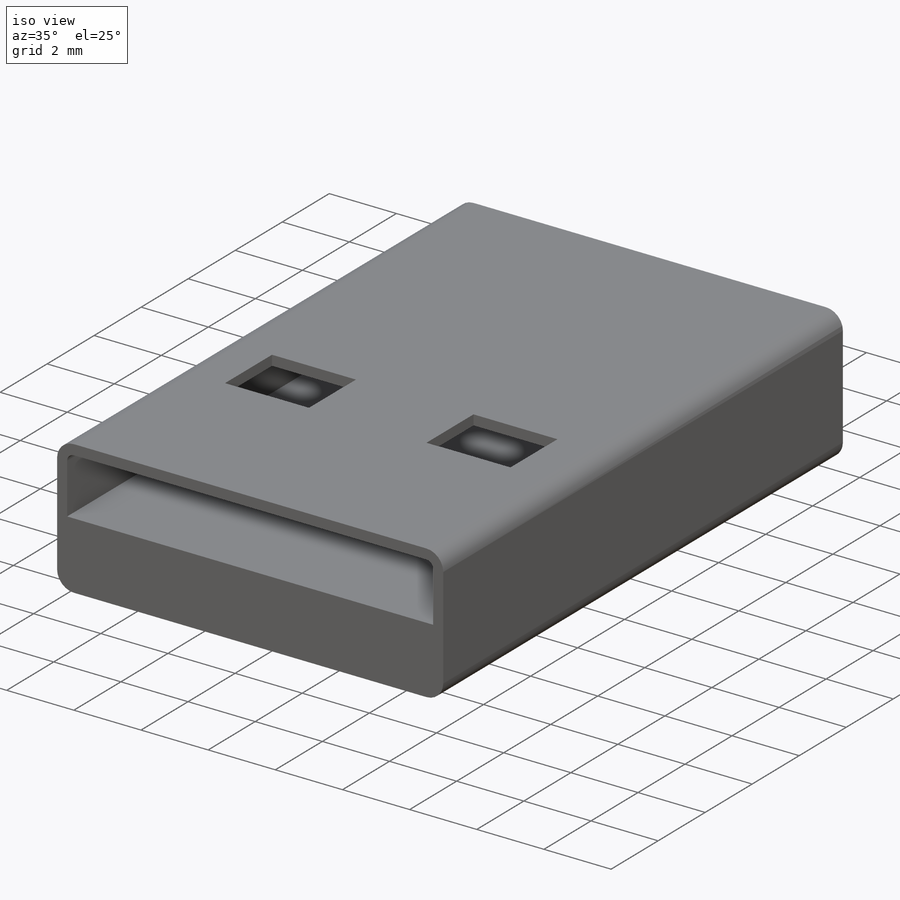
[diagram: iso view]
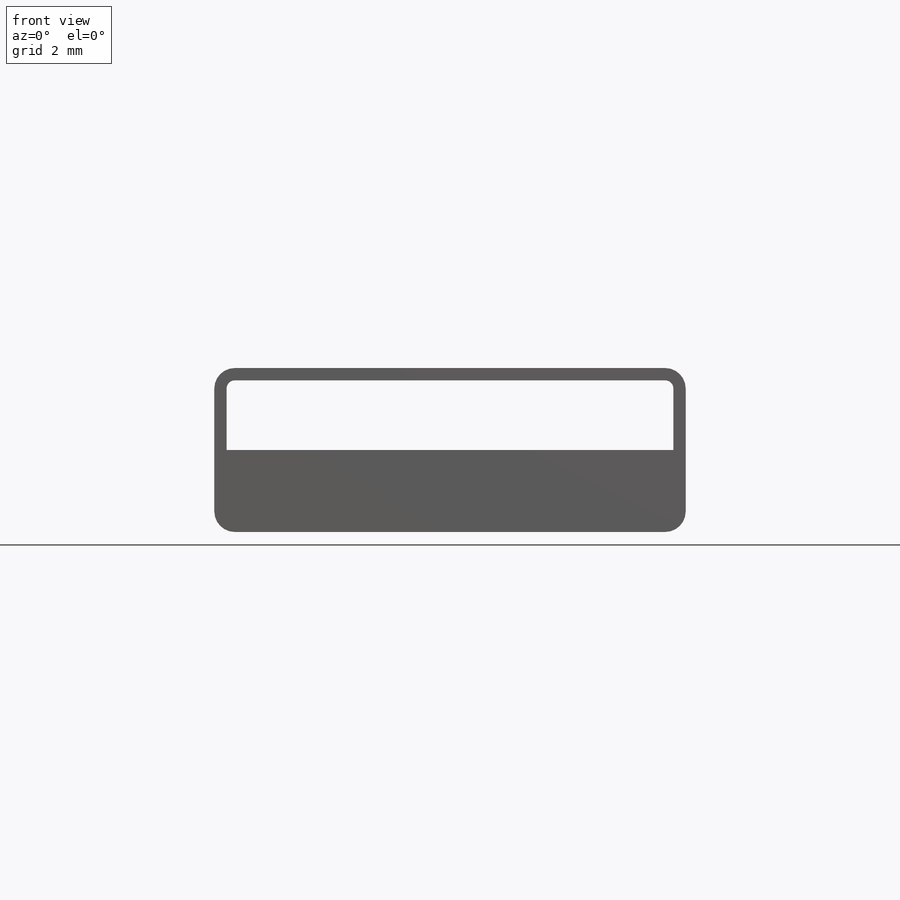
[diagram: front view]
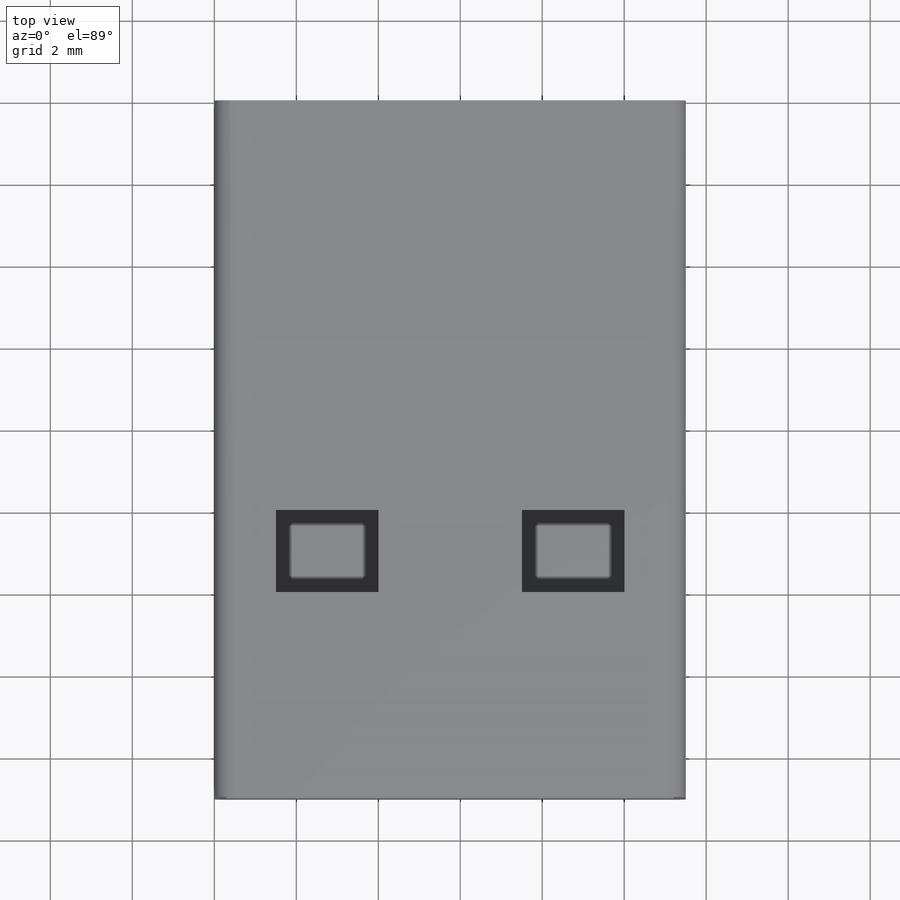
[diagram: top view]
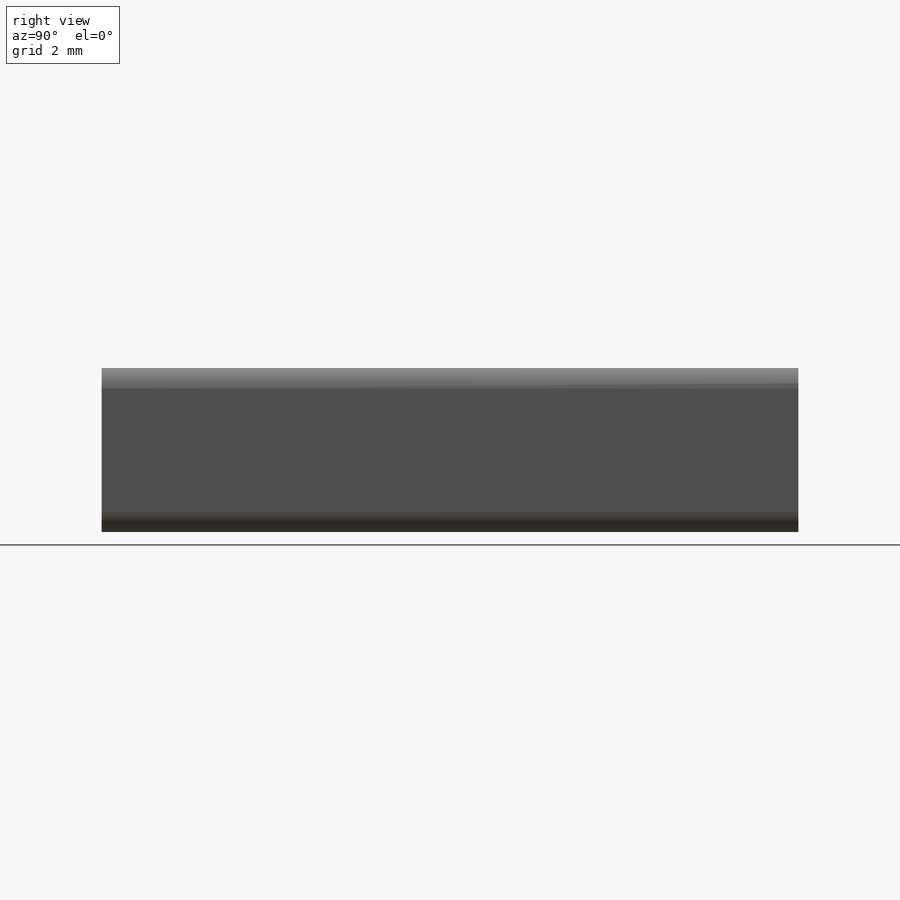
[diagram: right view]
SOLIDWORKS PART (.sldprt)
format: sldprt  version: not decoded by parser v0  size: 206,848 bytes
history: native  units: mm
features: sketch x4, plane x3, extrude x2, cut_extrude x2, material x1, fillet x1 (+14 scaffold rows collapsed)
feature tree (27):
  scaffold x14  (default folders/planes/origin — collapsed)
  material  "Материал <не указан>"
  plane  "Спереди"
  plane  "Сверху"
  plane  "Справа"
  sketch  "Эскиз1"  dims[D1=4.0mm D2=11.5mm]
  extrude  "Вытянуть1"  Depth=17mm
  fillet  "Скругление1"  Radius=0.5mm
  sketch  "Эскиз2"  dims[c1.D1=0.2mm c1.D2=~0.447718mm c2.D1=0.2mm c2.D3=~0.306063mm c3.D1=0.3mm]
  cut_extrude  "Вырез-Вытянуть1"  [1 undecoded]
  sketch  "Эскиз4"  dims[D1=2.0mm D2=2.5mm D3=5.0mm D4=1.5mm]
  cut_extrude  "Вырез-Вытянуть2"  [1 undecoded]
  sketch  "Эскиз3"
  extrude  "Вытянуть2"  Depth=0.2mm thickness=0.2mm
decode coverage: 6 of 9 modeling features carry decoded parameters
note: ~ marks probable driven/reference dimensions
note: 2 parameter values undecoded
note: suppression state not decoded; provenance and decode notes live in map.json
